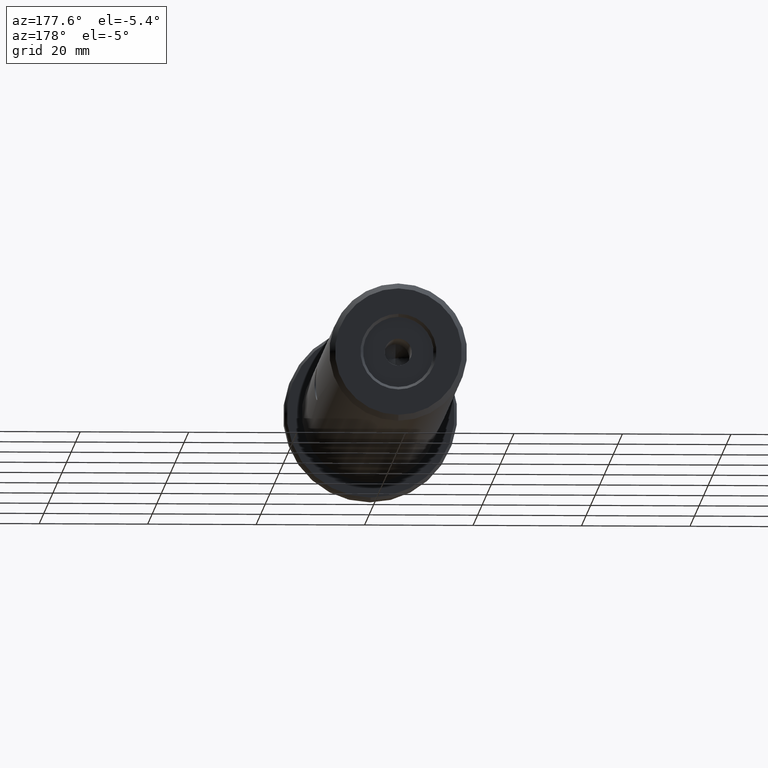
[diagram: clean part render]
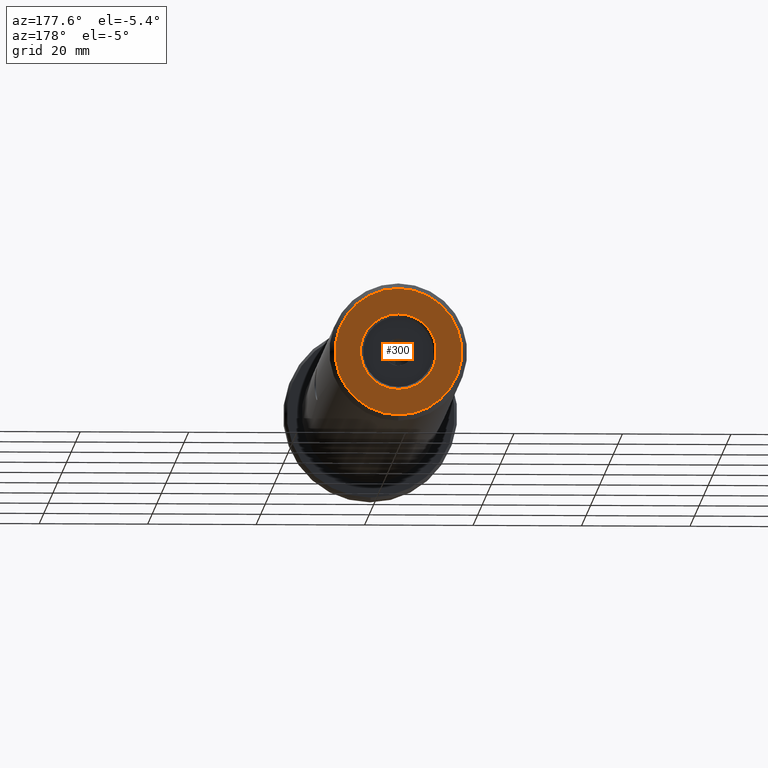
[diagram: same view with one face highlighted and labeled with its STEP entity id]
A machine part, auxiliary view. The second image highlights one B-rep face of the part: STEP entity #300.
In plain terms, the highlighted planar face has unit normal (0, 1, 0).
Its self-contained STEP definition (entity closure, byte-faithful):
#80 = ORIENTED_EDGE ( 'NONE', *, *, #501, .T. ) ;
#104 = FACE_BOUND ( 'NONE', #932, .T. ) ;
#145 = DIRECTION ( 'NONE',  ( 0.0000000000000000000, 0.0000000000000000000, 1.000000000000000000 ) ) ;
#194 = EDGE_CURVE ( 'NONE', #646, #945, #438, .T. ) ;
#198 = CARTESIAN_POINT ( 'NONE',  ( 0.0000000000000000000, 88.90000000000000600, 0.0000000000000000000 ) ) ;
#199 = DIRECTION ( 'NONE',  ( 0.0000000000000000000, 1.000000000000000000, 0.0000000000000000000 ) ) ;
#213 = CARTESIAN_POINT ( 'NONE',  ( 8.572527594031496900E-016, 88.90000000000000600, -7.000000000000020400 ) ) ;
#298 = CARTESIAN_POINT ( 'NONE',  ( 0.0000000000000000000, 88.90000000000000600, 7.000000000000020400 ) ) ;
#300 = ADVANCED_FACE ( 'NONE', ( #104, #931 ), #741, .T. ) ;
#344 = VERTEX_POINT ( 'NONE', #671 ) ;
#419 = AXIS2_PLACEMENT_3D ( 'NONE', #746, #804, #807 ) ;
#438 = CIRCLE ( 'NONE', #419, 7.000000000000020400 ) ;
#443 = EDGE_CURVE ( 'NONE', #945, #646, #543, .T. ) ;
#471 = CARTESIAN_POINT ( 'NONE',  ( 0.0000000000000000000, 88.90000000000000600, -11.70000000000000300 ) ) ;
#501 = EDGE_CURVE ( 'NONE', #938, #344, #696, .T. ) ;
#528 = DIRECTION ( 'NONE',  ( 0.0000000000000000000, 0.0000000000000000000, 1.000000000000000000 ) ) ;
#543 = CIRCLE ( 'NONE', #550, 7.000000000000020400 ) ;
#544 = EDGE_LOOP ( 'NONE', ( #80, #606 ) ) ;
#550 = AXIS2_PLACEMENT_3D ( 'NONE', #578, #579, #581 ) ;
#578 = CARTESIAN_POINT ( 'NONE',  ( 0.0000000000000000000, 88.90000000000000600, 0.0000000000000000000 ) ) ;
#579 = DIRECTION ( 'NONE',  ( -0.0000000000000000000, -1.000000000000000000, -0.0000000000000000000 ) ) ;
#581 = DIRECTION ( 'NONE',  ( 0.0000000000000000000, 0.0000000000000000000, 1.000000000000000000 ) ) ;
#592 = AXIS2_PLACEMENT_3D ( 'NONE', #751, #972, #672 ) ;
#606 = ORIENTED_EDGE ( 'NONE', *, *, #993, .T. ) ;
#631 = ORIENTED_EDGE ( 'NONE', *, *, #194, .T. ) ;
#646 = VERTEX_POINT ( 'NONE', #298 ) ;
#671 = CARTESIAN_POINT ( 'NONE',  ( 1.494069094959771500E-015, 88.90000000000000600, 11.70000000000000300 ) ) ;
#672 = DIRECTION ( 'NONE',  ( 0.0000000000000000000, -0.0000000000000000000, 1.000000000000000000 ) ) ;
#696 = CIRCLE ( 'NONE', #951, 11.70000000000000300 ) ;
#715 = DIRECTION ( 'NONE',  ( 0.0000000000000000000, 1.000000000000000000, 0.0000000000000000000 ) ) ;
#741 = PLANE ( 'NONE',  #592 ) ;
#746 = CARTESIAN_POINT ( 'NONE',  ( 0.0000000000000000000, 88.90000000000000600, 0.0000000000000000000 ) ) ;
#751 = CARTESIAN_POINT ( 'NONE',  ( 0.0000000000000000000, 88.90000000000000600, 0.0000000000000000000 ) ) ;
#784 = CIRCLE ( 'NONE', #886, 11.70000000000000300 ) ;
#804 = DIRECTION ( 'NONE',  ( -0.0000000000000000000, -1.000000000000000000, -0.0000000000000000000 ) ) ;
#807 = DIRECTION ( 'NONE',  ( 0.0000000000000000000, 0.0000000000000000000, 1.000000000000000000 ) ) ;
#886 = AXIS2_PLACEMENT_3D ( 'NONE', #198, #199, #145 ) ;
#931 = FACE_OUTER_BOUND ( 'NONE', #544, .T. ) ;
#932 = EDGE_LOOP ( 'NONE', ( #631, #979 ) ) ;
#938 = VERTEX_POINT ( 'NONE', #471 ) ;
#945 = VERTEX_POINT ( 'NONE', #213 ) ;
#951 = AXIS2_PLACEMENT_3D ( 'NONE', #986, #715, #528 ) ;
#972 = DIRECTION ( 'NONE',  ( 0.0000000000000000000, 1.000000000000000000, 0.0000000000000000000 ) ) ;
#979 = ORIENTED_EDGE ( 'NONE', *, *, #443, .T. ) ;
#986 = CARTESIAN_POINT ( 'NONE',  ( 0.0000000000000000000, 88.90000000000000600, 0.0000000000000000000 ) ) ;
#993 = EDGE_CURVE ( 'NONE', #344, #938, #784, .T. ) ;